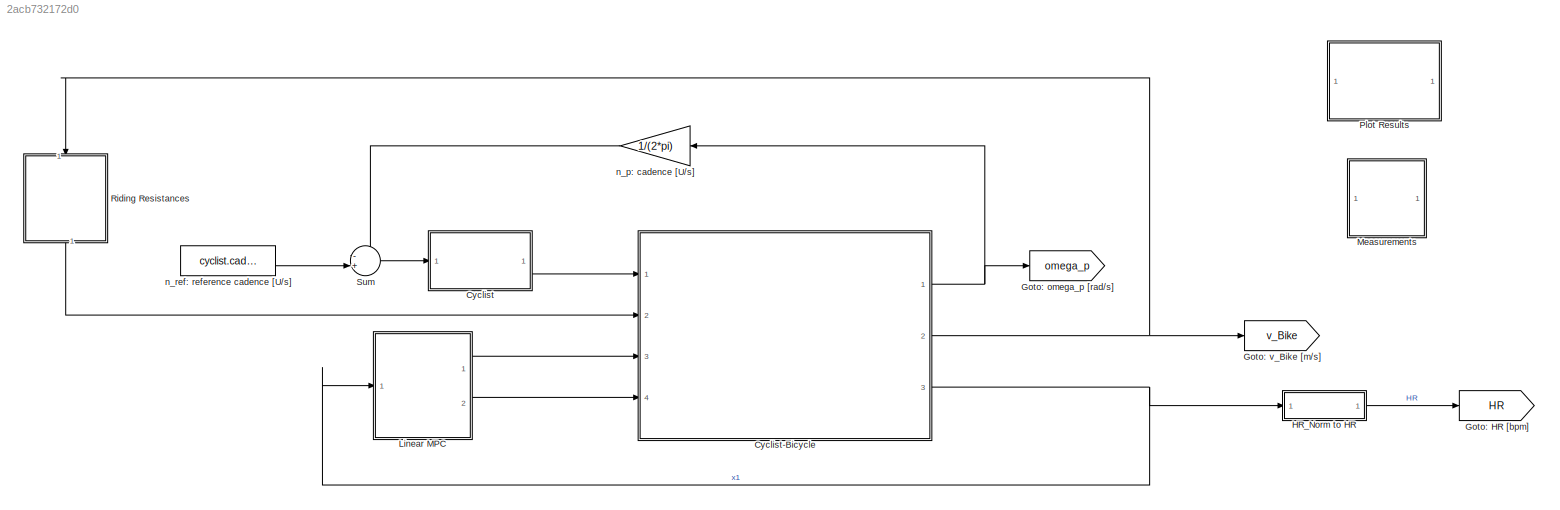
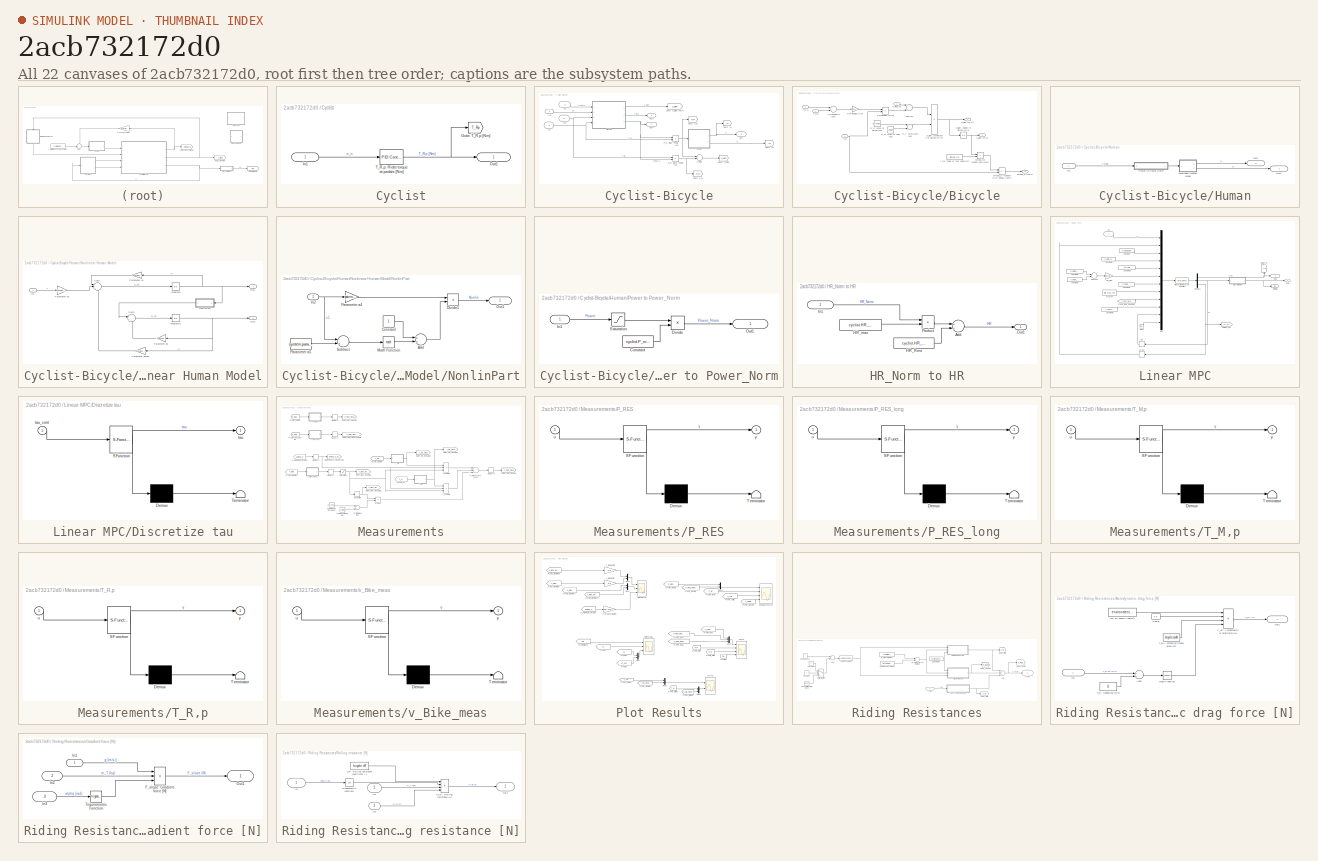
[diagram: thumbnail index - all 22 canvases of the model, root first then tree order]
MODEL slx_2acb732172d0
KIND model
CONFIG AbsTol = auto
CONFIG FixedStep = 1
CONFIG MaxStep = auto
CONFIG MinStep = auto
CONFIG RelTol = 1e-3
CONFIG SampleTimeConstraint = Unconstrained
CONFIG Solver = FixedStepAuto
CONFIG SolverMode = Auto
CONFIG SolverName = FixedStepAuto
CONFIG StartTime = 0.0
CONFIG StopTime = 100
BLOCK [SubSystem] Cyclist
  Ports = [1, 1]
  RequestExecContextInheritance = off
  Variant = off
BLOCK [SubSystem] Cyclist-Bicycle
  Ports = [4, 3]
  RequestExecContextInheritance = off
  Variant = off
BLOCK [SubSystem] Cyclist-Bicycle/Bicycle
  Ports = [4, 3]
  RequestExecContextInheritance = off
  Variant = off
BLOCK [Gain] Cyclist-Bicycle/Bicycle/F_Propulsion,p [N]
  Gain = 1/bicycle.rrw
  OutDataTypeStr = Inherit: Inherit via internal rule
  ParamDataTypeStr = Inherit: Inherit via internal rule
  SaturateOnIntegerOverflow = off
BLOCK [Product] Cyclist-Bicycle/Bicycle/F_Propulsion,rw [N]
  InputSameDT = off
  Inputs = */
  OutDataTypeStr = Inherit: Inherit via internal rule
  Ports = [2, 1]
  RndMeth = Floor
  SaturateOnIntegerOverflow = off
BLOCK [Inport] Cyclist-Bicycle/Bicycle/F_RES,rw
  IconDisplay = Port number
BLOCK [Sum] Cyclist-Bicycle/Bicycle/Subtract
  InputSameDT = off
  Inputs = -+
  OutDataTypeStr = Inherit: Inherit via internal rule
  Ports = [2, 1]
  SaturateOnIntegerOverflow = off
BLOCK [Inport] Cyclist-Bicycle/Bicycle/T_M,p
  IconDisplay = Port number
  Port = 3
BLOCK [Sum] Cyclist-Bicycle/Bicycle/T_Propulsion,p [Nm]
  InputSameDT = off
  OutDataTypeStr = Inherit: Inherit via internal rule
  Ports = [2, 1]
  SaturateOnIntegerOverflow = off
BLOCK [Inport] Cyclist-Bicycle/Bicycle/T_R,p
  IconDisplay = Port number
  Port = 4
BLOCK [Outport] Cyclist-Bicycle/Bicycle/a_Bike [m//s²]
  IconDisplay = Port number
BLOCK [Product] Cyclist-Bicycle/Bicycle/a_Bike: acceleration of bicycle [m//s²]
  InputSameDT = off
  Inputs = */
  OutDataTypeStr = Inherit: Inherit via internal rule
  Ports = [2, 1]
  RndMeth = Floor
  SaturateOnIntegerOverflow = off
BLOCK [Constant] Cyclist-Bicycle/Bicycle/m_B: mass of bicycle [kg]
  Value = bicycle.weight
BLOCK [Constant] Cyclist-Bicycle/Bicycle/m_R: mass of rider [kg]
  Value = cyclist.weight
BLOCK [Sum] Cyclist-Bicycle/Bicycle/m_T: total mass [kg]
  InputSameDT = off
  OutDataTypeStr = Inherit: Inherit via internal rule
  Ports = [2, 1]
  SaturateOnIntegerOverflow = off
BLOCK [Outport] Cyclist-Bicycle/Bicycle/omega_p [rad//s]
  IconDisplay = Port number
  Port = 3
BLOCK [Product] Cyclist-Bicycle/Bicycle/omega_p: revolutions of pedals [rad//s]
  InputSameDT = off
  Inputs = */
  OutDataTypeStr = Inherit: Inherit via internal rule
  Ports = [2, 1]
  RndMeth = Floor
  SaturateOnIntegerOverflow = off
BLOCK [Product] Cyclist-Bicycle/Bicycle/omega_rw: revolutions of rear wheel [rad//s]
  InputSameDT = off
  Inputs = */
  OutDataTypeStr = Inherit: Inherit via internal rule
  Ports = [2, 1]
  RndMeth = Floor
  SaturateOnIntegerOverflow = off
BLOCK [Constant] Cyclist-Bicycle/Bicycle/r_rw: radius of rear wheel [m]
  Value = bicycle.rrw
BLOCK [Inport] Cyclist-Bicycle/Bicycle/tau
  IconDisplay = Port number
  Port = 2
BLOCK [Outport] Cyclist-Bicycle/Bicycle/v_Bike [m//s]
  IconDisplay = Port number
  Port = 2
BLOCK [Integrator] Cyclist-Bicycle/Bicycle/v_Bike: velocity of bicycle [m//s]
  InitialCondition = init.v_Bike
  Ports = [1, 1]
BLOCK [Goto] Cyclist-Bicycle/Goto: P_M
  GotoTag = P_M
  TagVisibility = global
BLOCK [Goto] Cyclist-Bicycle/Goto: P_R
  GotoTag = P_R
  TagVisibility = global
BLOCK [Goto] Cyclist-Bicycle/Goto: P_RES
  GotoTag = P_RES
  TagVisibility = global
BLOCK [Goto] Cyclist-Bicycle/Goto: a_Bike [m//s²]
  GotoTag = a_Bike
  TagVisibility = global
BLOCK [Goto] Cyclist-Bicycle/Goto: x1
  GotoTag = x1
  TagVisibility = global
BLOCK [Goto] Cyclist-Bicycle/Goto: x2
  GotoTag = x2
  TagVisibility = global
BLOCK [SubSystem] Cyclist-Bicycle/Human
  Ports = [1, 2]
  RequestExecContextInheritance = off
  Variant = off
BLOCK [Inport] Cyclist-Bicycle/Human/In1
  IconDisplay = Signal name
BLOCK [SubSystem] Cyclist-Bicycle/Human/Nonlinear Human Model
  Ports = [1, 2]
  RequestExecContextInheritance = off
  Variant = off
BLOCK [Inport] Cyclist-Bicycle/Human/Nonlinear Human Model/In1
  IconDisplay = Signal name
BLOCK [Integrator] Cyclist-Bicycle/Human/Nonlinear Human Model/Integrator
  InitialCondition = init.x1
  Ports = [1, 1]
BLOCK [Integrator] Cyclist-Bicycle/Human/Nonlinear Human Model/Integrator1
  InitialCondition = init.x2
  Ports = [1, 1]
BLOCK [SubSystem] Cyclist-Bicycle/Human/Nonlinear Human Model/NonlinPart
  Ports = [1, 1]
  RequestExecContextInheritance = off
  Variant = off
BLOCK [Sum] Cyclist-Bicycle/Human/Nonlinear Human Model/NonlinPart/Add
  InputSameDT = off
  OutDataTypeStr = Inherit: Inherit via internal rule
  Ports = [2, 1]
  SaturateOnIntegerOverflow = off
BLOCK [Constant] Cyclist-Bicycle/Human/Nonlinear Human Model/NonlinPart/Constant
BLOCK [Product] Cyclist-Bicycle/Human/Nonlinear Human Model/NonlinPart/Divide1
  InputSameDT = off
  Inputs = */
  OutDataTypeStr = Inherit: Inherit via internal rule
  Ports = [2, 1]
  RndMeth = Floor
  SaturateOnIntegerOverflow = off
BLOCK [Inport] Cyclist-Bicycle/Human/Nonlinear Human Model/NonlinPart/In2
  IconDisplay = Signal name
BLOCK [Math] Cyclist-Bicycle/Human/Nonlinear Human Model/NonlinPart/Math Function
  Ports = [1, 1]
BLOCK [Outport] Cyclist-Bicycle/Human/Nonlinear Human Model/NonlinPart/Out1
  IconDisplay = Signal name
BLOCK [Gain] Cyclist-Bicycle/Human/Nonlinear Human Model/NonlinPart/Parameter a4
  Gain = system.param(4)
  OutDataTypeStr = Inherit: Inherit via internal rule
  ParamDataTypeStr = Inherit: Inherit via internal rule
  SaturateOnIntegerOverflow = off
BLOCK [Constant] Cyclist-Bicycle/Human/Nonlinear Human Model/NonlinPart/Parameter a5
  Value = system.param(5)
BLOCK [Sum] Cyclist-Bicycle/Human/Nonlinear Human Model/NonlinPart/Subtract
  InputSameDT = off
  Inputs = -+
  OutDataTypeStr = Inherit: Inherit via internal rule
  Ports = [2, 1]
  SaturateOnIntegerOverflow = off
BLOCK [Outport] Cyclist-Bicycle/Human/Nonlinear Human Model/Out1
  IconDisplay = Signal name
BLOCK [Outport] Cyclist-Bicycle/Human/Nonlinear Human Model/Out2
  IconDisplay = Signal name
  Port = 2
BLOCK [Gain] Cyclist-Bicycle/Human/Nonlinear Human Model/Parameter a1
  Gain = -system.param(1)
  OutDataTypeStr = Inherit: Inherit via internal rule
  ParamDataTypeStr = Inherit: Inherit via internal rule
  SaturateOnIntegerOverflow = off
BLOCK [Gain] Cyclist-Bicycle/Human/Nonlinear Human Model/Parameter a2
  Gain = system.param(2)
  OutDataTypeStr = Inherit: Inherit via internal rule
  ParamDataTypeStr = Inherit: Inherit via internal rule
  SaturateOnIntegerOverflow = off
BLOCK [Gain] Cyclist-Bicycle/Human/Nonlinear Human Model/Parameter a3
  Gain = -system.param(3)
  OutDataTypeStr = Inherit: Inherit via internal rule
  ParamDataTypeStr = Inherit: Inherit via internal rule
  SaturateOnIntegerOverflow = off
BLOCK [Gain] Cyclist-Bicycle/Human/Nonlinear Human Model/Parameter a6=a2
  Gain = system.param(6)
  OutDataTypeStr = Inherit: Inherit via internal rule
  ParamDataTypeStr = Inherit: Inherit via internal rule
  SaturateOnIntegerOverflow = off
BLOCK [Sum] Cyclist-Bicycle/Human/Nonlinear Human Model/Sum1
  IconShape = round
  InputSameDT = off
  Inputs = |+++
  OutDataTypeStr = Inherit: Inherit via internal rule
  Ports = [3, 1]
  SaturateOnIntegerOverflow = off
BLOCK [Sum] Cyclist-Bicycle/Human/Nonlinear Human Model/Sum2
  IconShape = round
  InputSameDT = off
  Inputs = |++
  OutDataTypeStr = Inherit: Inherit via internal rule
  Ports = [2, 1]
  SaturateOnIntegerOverflow = off
BLOCK [Outport] Cyclist-Bicycle/Human/Out1
  IconDisplay = Signal name
BLOCK [Outport] Cyclist-Bicycle/Human/Out2
  IconDisplay = Signal name
  Port = 2
BLOCK [SubSystem] Cyclist-Bicycle/Human/Power to Power_Norm
  Ports = [1, 1]
  RequestExecContextInheritance = off
  Variant = off
BLOCK [Constant] Cyclist-Bicycle/Human/Power to Power_Norm/Constant
  Value = cyclist.P_max
BLOCK [Product] Cyclist-Bicycle/Human/Power to Power_Norm/Divide
  InputSameDT = off
  Inputs = */
  OutDataTypeStr = Inherit: Inherit via internal rule
  Ports = [2, 1]
  RndMeth = Floor
  SaturateOnIntegerOverflow = off
BLOCK [Inport] Cyclist-Bicycle/Human/Power to Power_Norm/In1
  IconDisplay = Signal name
BLOCK [Outport] Cyclist-Bicycle/Human/Power to Power_Norm/Out1
  IconDisplay = Signal name
BLOCK [Saturate] Cyclist-Bicycle/Human/Power to Power_Norm/Saturation
  InputPortMap = u0
  LowerLimit = 0
  Ports = [1, 1]
  UpperLimit = cyclist.P_max
  ZeroCross = off
BLOCK [Inport] Cyclist-Bicycle/In1
  IconDisplay = Signal name
  Port = 2
BLOCK [Inport] Cyclist-Bicycle/In2
  IconDisplay = Signal name
  Port = 4
BLOCK [Inport] Cyclist-Bicycle/In3
  IconDisplay = Signal name
  Port = 3
BLOCK [Inport] Cyclist-Bicycle/In4
  IconDisplay = Signal name
BLOCK [Outport] Cyclist-Bicycle/Out1
  IconDisplay = Signal name
  Port = 3
BLOCK [Outport] Cyclist-Bicycle/Out2
  IconDisplay = Signal name
  Port = 2
BLOCK [Outport] Cyclist-Bicycle/Out4
  IconDisplay = Signal name
BLOCK [Product] Cyclist-Bicycle/P_M: Motor Power [W]
  InputSameDT = off
  OutDataTypeStr = Inherit: Inherit via internal rule
  Ports = [2, 1]
  RndMeth = Floor
  SaturateOnIntegerOverflow = off
BLOCK [Product] Cyclist-Bicycle/P_R: Rider Power [W]
  InputSameDT = off
  OutDataTypeStr = Inherit: Inherit via internal rule
  Ports = [2, 1]
  RndMeth = Floor
  SaturateOnIntegerOverflow = off
BLOCK [Sum] Cyclist-Bicycle/P_RES
  InputSameDT = off
  OutDataTypeStr = Inherit: Inherit via internal rule
  Ports = [2, 1]
  SaturateOnIntegerOverflow = off
BLOCK [Goto] Cyclist/Goto: T_R,p [Nm]
  GotoTag = T_Rp
  TagVisibility = global
BLOCK [Inport] Cyclist/In1
  IconDisplay = Signal name
BLOCK [Outport] Cyclist/Out1
  IconDisplay = Signal name
BLOCK [Reference] Cyclist/T_R,p: Rider torque at pedals [Nm]  REF=simulink/Continuous/PID Controller
  Ports = [1, 1]
  SourceBlock = simulink/Continuous/PID Controller
  SourceType = PID 1dof
BLOCK [Goto] Goto: HR [bpm]
  GotoTag = HR
  TagVisibility = global
BLOCK [Goto] Goto: omega_p [rad//s]
  GotoTag = omega_p
  TagVisibility = global
BLOCK [Goto] Goto: v_Bike [m//s]
  GotoTag = v_Bike
  TagVisibility = global
BLOCK [SubSystem] HR_Norm to HR
  Ports = [1, 1]
  RequestExecContextInheritance = off
  Variant = off
BLOCK [Sum] HR_Norm to HR/Add
  InputSameDT = off
  OutDataTypeStr = Inherit: Inherit via internal rule
  Ports = [2, 1]
  SaturateOnIntegerOverflow = off
BLOCK [Constant] HR_Norm to HR/HR_Rest
  Value = cyclist.HR_rest
BLOCK [Constant] HR_Norm to HR/HR_max
  Value = cyclist.HR_max
BLOCK [Inport] HR_Norm to HR/In1
  IconDisplay = Signal name
BLOCK [Outport] HR_Norm to HR/Out1
  IconDisplay = Signal name
BLOCK [Product] HR_Norm to HR/Product
  InputSameDT = off
  OutDataTypeStr = Inherit: Inherit via internal rule
  Ports = [2, 1]
  RndMeth = Floor
  SaturateOnIntegerOverflow = off
BLOCK [SubSystem] Linear MPC
  Ports = [1, 2]
  RequestExecContextInheritance = off
  Variant = off
BLOCK [Clock] Linear MPC/Clock
BLOCK [Constant] Linear MPC/Constant
  Value = system.param
BLOCK [Constant] Linear MPC/Constant1
  Value = cyclist.P_max
BLOCK [Constant] Linear MPC/Constant2
  Value = bicycle.rrw
BLOCK [Constant] Linear MPC/Constant3
  Value = cyclist.HR_rest
BLOCK [Constant] Linear MPC/Constant4
  Value = cyclist.HR_max
BLOCK [Constant] Linear MPC/Constant5
  Value = cyclist.HR_ref
BLOCK [Constant] Linear MPC/Constant6
  Value = cyclist.cadence
BLOCK [Demux] Linear MPC/Demux1
  DisplayOption = bar
  Outputs = 3
  Ports = [1, 3]
BLOCK [SubSystem] Linear MPC/Discretize tau
  ErrorFcn = Stateflow.Translate.translate
  PermitHierarchicalResolution = ExplicitOnly
  Ports = [1, 1]
  RequestExecContextInheritance = off
  SFBlockType = MATLAB Function
  TreatAsAtomicUnit = on
  Variant = off
BLOCK [Demux] Linear MPC/Discretize tau/ Demux 
  Outputs = 1
  Ports = [1, 1]
BLOCK [S-Function] Linear MPC/Discretize tau/ SFunction 
  EnableBusSupport = off
  FunctionName = sf_sfun
  PortCounts = [1 2]
  Ports = [1, 2]
  SFunctionDeploymentMode = off
  Tag = Stateflow S-Function TorqueControl_QuadRad_MPC_TMTau_disc 1
BLOCK [Terminator] Linear MPC/Discretize tau/ Terminator 
BLOCK [Outport] Linear MPC/Discretize tau/tau
  IconDisplay = Port number
BLOCK [Inport] Linear MPC/Discretize tau/tau_cont
  IconDisplay = Port number
BLOCK [From] Linear MPC/From: v_Bike_meas [m//s]
  GotoTag = F_RES_meas
  TagVisibility = global
BLOCK [Goto] Linear MPC/Goto: T_M
  GotoTag = T_M
  TagVisibility = global
BLOCK [Goto] Linear MPC/Goto: tau
  GotoTag = tau
  TagVisibility = global
BLOCK [Goto] Linear MPC/Goto: x2_est
  GotoTag = x2_est
  TagVisibility = global
BLOCK [Gain] Linear MPC/HR_max
  Gain = 1/cyclist.HR_max
  OutDataTypeStr = Inherit: Inherit via internal rule
  ParamDataTypeStr = Inherit: Inherit via internal rule
  SaturateOnIntegerOverflow = off
BLOCK [Inport] Linear MPC/In1
  IconDisplay = Signal name
BLOCK [MATLABFcn] Linear MPC/Interpreted MATLAB Function
  MATLABFcn = LinearMPC_TMTau_cont
  OutputDimensions = 3
  Ports = [1, 1]
BLOCK [Mux] Linear MPC/Mux
  DisplayOption = bar
  Inputs = 12
  Ports = [12, 1]
BLOCK [Outport] Linear MPC/Out1
  IconDisplay = Signal name
BLOCK [Outport] Linear MPC/Out2
  IconDisplay = Signal name
  Port = 2
BLOCK [Constant] Linear MPC/P_M_ref
  Value = init.P_M_ref
BLOCK [Sum] Linear MPC/Subtract1
  InputSameDT = off
  Inputs = +-
  OutDataTypeStr = Inherit: Inherit via internal rule
  Ports = [2, 1]
  SaturateOnIntegerOverflow = off
BLOCK [Memory] Linear MPC/tau
  InheritSampleTime = on
  X0 = init.tau
BLOCK [Memory] Linear MPC/x2_est
  InheritSampleTime = on
  X0 = init.x2_est
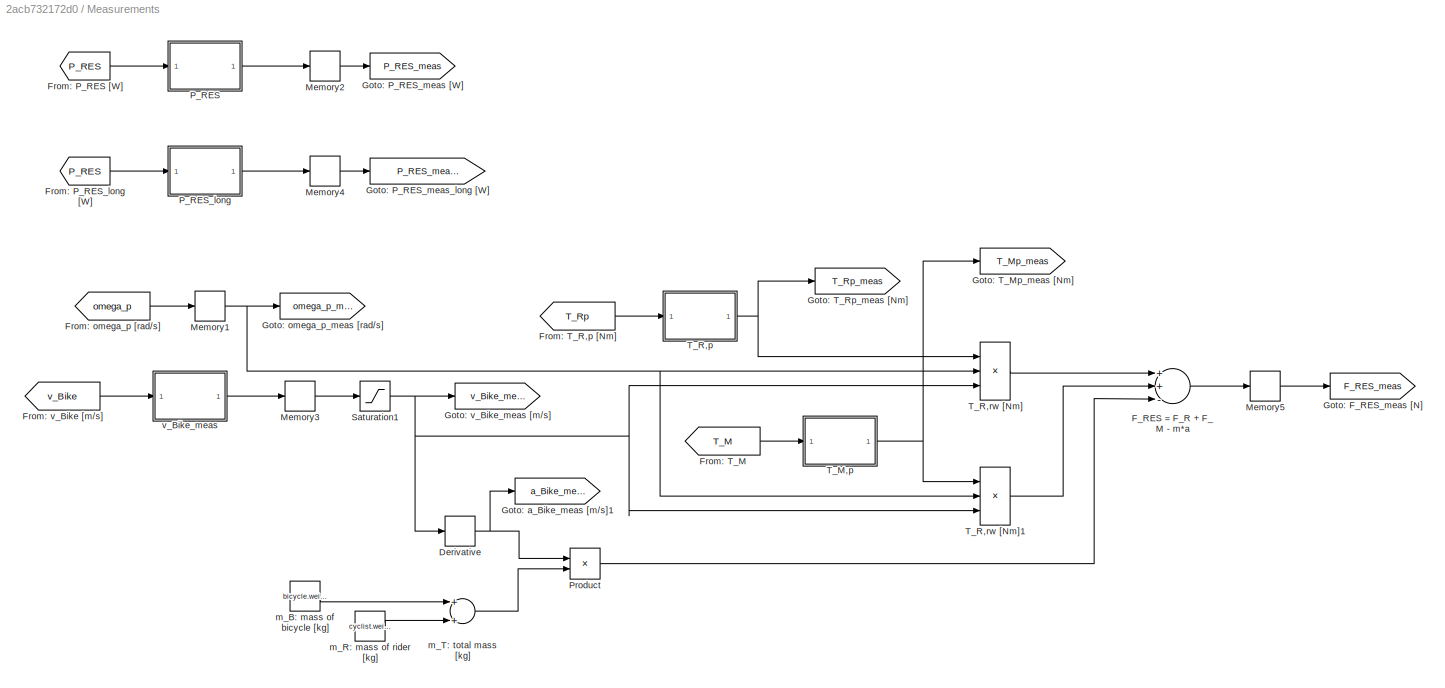
BLOCK [SubSystem] Measurements
  Ports = []
  RequestExecContextInheritance = off
  Variant = off
BLOCK [Derivative] Measurements/Derivative
BLOCK [Sum] Measurements/F_RES = F_R + F_M - m*a
  InputSameDT = off
  Inputs = ++-
  OutDataTypeStr = Inherit: Inherit via internal rule
  Ports = [3, 1]
  SaturateOnIntegerOverflow = off
BLOCK [From] Measurements/From: P_RES [W]
  GotoTag = P_RES
  TagVisibility = global
BLOCK [From] Measurements/From: P_RES_long [W]
  GotoTag = P_RES
  TagVisibility = global
BLOCK [From] Measurements/From: T_M
  GotoTag = T_M
  TagVisibility = global
BLOCK [From] Measurements/From: T_R,p [Nm]
  GotoTag = T_Rp
  TagVisibility = global
BLOCK [From] Measurements/From: omega_p [rad//s]
  GotoTag = omega_p
  TagVisibility = global
BLOCK [From] Measurements/From: v_Bike [m//s]
  GotoTag = v_Bike
  TagVisibility = global
BLOCK [Goto] Measurements/Goto: F_RES_meas [N]
  GotoTag = F_RES_meas
  TagVisibility = global
BLOCK [Goto] Measurements/Goto: P_RES_meas [W]
  GotoTag = P_RES_meas
  TagVisibility = global
BLOCK [Goto] Measurements/Goto: P_RES_meas_long [W]
  GotoTag = P_RES_meas_long
  TagVisibility = global
BLOCK [Goto] Measurements/Goto: T_Mp_meas [Nm]
  GotoTag = T_Mp_meas
  TagVisibility = global
BLOCK [Goto] Measurements/Goto: T_Rp_meas [Nm]
  GotoTag = T_Rp_meas
  TagVisibility = global
BLOCK [Goto] Measurements/Goto: a_Bike_meas [m//s]1
  GotoTag = a_Bike_meas
  TagVisibility = global
BLOCK [Goto] Measurements/Goto: omega_p_meas [rad//s]
  GotoTag = omega_p_meas
  TagVisibility = global
BLOCK [Goto] Measurements/Goto: v_Bike_meas [m//s]
  GotoTag = v_Bike_meas
  TagVisibility = global
BLOCK [Memory] Measurements/Memory1
  InheritSampleTime = on
  X0 = init.omega_p
BLOCK [Memory] Measurements/Memory2
  InheritSampleTime = on
  X0 = init.P_RES
BLOCK [Memory] Measurements/Memory3
  InheritSampleTime = on
  X0 = init.v_Bike
BLOCK [Memory] Measurements/Memory4
  InheritSampleTime = on
  X0 = init.P_RES
BLOCK [Memory] Measurements/Memory5
  InheritSampleTime = on
  X0 = 10
BLOCK [SubSystem] Measurements/P_RES
  ErrorFcn = Stateflow.Translate.translate
  PermitHierarchicalResolution = ExplicitOnly
  Ports = [1, 1]
  RequestExecContextInheritance = off
  SFBlockType = MATLAB Function
  TreatAsAtomicUnit = on
  Variant = off
BLOCK [Demux] Measurements/P_RES/ Demux 
  Outputs = 1
  Ports = [1, 1]
BLOCK [S-Function] Measurements/P_RES/ SFunction 
  EnableBusSupport = on
  FunctionName = sf_sfun
  PortCounts = [1 2]
  Ports = [1, 2]
  SFunctionDeploymentMode = off
  Tag = Stateflow S-Function TorqueControl_QuadRad_MPC_TMTau_disc 2
BLOCK [Terminator] Measurements/P_RES/ Terminator 
BLOCK [Inport] Measurements/P_RES/u
  IconDisplay = Port number
BLOCK [Outport] Measurements/P_RES/y
  IconDisplay = Port number
BLOCK [SubSystem] Measurements/P_RES_long
  ErrorFcn = Stateflow.Translate.translate
  PermitHierarchicalResolution = ExplicitOnly
  Ports = [1, 1]
  RequestExecContextInheritance = off
  SFBlockType = MATLAB Function
  TreatAsAtomicUnit = on
  Variant = off
BLOCK [Demux] Measurements/P_RES_long/ Demux 
  Outputs = 1
  Ports = [1, 1]
BLOCK [S-Function] Measurements/P_RES_long/ SFunction 
  EnableBusSupport = on
  FunctionName = sf_sfun
  PortCounts = [1 2]
  Ports = [1, 2]
  SFunctionDeploymentMode = off
  Tag = Stateflow S-Function TorqueControl_QuadRad_MPC_TMTau_disc 4
BLOCK [Terminator] Measurements/P_RES_long/ Terminator 
BLOCK [Inport] Measurements/P_RES_long/u
  IconDisplay = Port number
BLOCK [Outport] Measurements/P_RES_long/y
  IconDisplay = Port number
BLOCK [Product] Measurements/Product
  InputSameDT = off
  OutDataTypeStr = Inherit: Inherit via internal rule
  Ports = [2, 1]
  RndMeth = Floor
  SaturateOnIntegerOverflow = off
BLOCK [Saturate] Measurements/Saturation1
  InputPortMap = u0
  LowerLimit = 0.1
  Ports = [1, 1]
  UpperLimit = 100
BLOCK [SubSystem] Measurements/T_M,p
  ErrorFcn = Stateflow.Translate.translate
  PermitHierarchicalResolution = ExplicitOnly
  Ports = [1, 1]
  RequestExecContextInheritance = off
  SFBlockType = MATLAB Function
  TreatAsAtomicUnit = on
  Variant = off
BLOCK [Demux] Measurements/T_M,p/ Demux 
  Outputs = 1
  Ports = [1, 1]
BLOCK [S-Function] Measurements/T_M,p/ SFunction 
  EnableBusSupport = on
  FunctionName = sf_sfun
  PortCounts = [1 2]
  Ports = [1, 2]
  SFunctionDeploymentMode = off
  Tag = Stateflow S-Function TorqueControl_QuadRad_MPC_TMTau_disc 6
BLOCK [Terminator] Measurements/T_M,p/ Terminator 
BLOCK [Inport] Measurements/T_M,p/u
  IconDisplay = Port number
BLOCK [Outport] Measurements/T_M,p/y
  IconDisplay = Port number
BLOCK [SubSystem] Measurements/T_R,p
  ErrorFcn = Stateflow.Translate.translate
  PermitHierarchicalResolution = ExplicitOnly
  Ports = [1, 1]
  RequestExecContextInheritance = off
  SFBlockType = MATLAB Function
  TreatAsAtomicUnit = on
  Variant = off
BLOCK [Demux] Measurements/T_R,p/ Demux 
  Outputs = 1
  Ports = [1, 1]
BLOCK [S-Function] Measurements/T_R,p/ SFunction 
  EnableBusSupport = on
  FunctionName = sf_sfun
  PortCounts = [1 2]
  Ports = [1, 2]
  SFunctionDeploymentMode = off
  Tag = Stateflow S-Function TorqueControl_QuadRad_MPC_TMTau_disc 5
BLOCK [Terminator] Measurements/T_R,p/ Terminator 
BLOCK [Inport] Measurements/T_R,p/u
  IconDisplay = Port number
BLOCK [Outport] Measurements/T_R,p/y
  IconDisplay = Port number
BLOCK [Product] Measurements/T_R,rw [Nm]
  InputSameDT = off
  Inputs = **/
  OutDataTypeStr = Inherit: Inherit via internal rule
  Ports = [3, 1]
  RndMeth = Floor
  SaturateOnIntegerOverflow = off
BLOCK [Product] Measurements/T_R,rw [Nm]1
  InputSameDT = off
  Inputs = **/
  OutDataTypeStr = Inherit: Inherit via internal rule
  Ports = [3, 1]
  RndMeth = Floor
  SaturateOnIntegerOverflow = off
BLOCK [Constant] Measurements/m_B: mass of bicycle [kg]
  Value = bicycle.weight
BLOCK [Constant] Measurements/m_R: mass of rider [kg]
  Value = cyclist.weight
BLOCK [Sum] Measurements/m_T: total mass [kg]
  InputSameDT = off
  OutDataTypeStr = Inherit: Inherit via internal rule
  Ports = [2, 1]
  SaturateOnIntegerOverflow = off
BLOCK [SubSystem] Measurements/v_Bike_meas
  ErrorFcn = Stateflow.Translate.translate
  PermitHierarchicalResolution = ExplicitOnly
  Ports = [1, 1]
  RequestExecContextInheritance = off
  SFBlockType = MATLAB Function
  TreatAsAtomicUnit = on
  Variant = off
BLOCK [Demux] Measurements/v_Bike_meas/ Demux 
  Outputs = 1
  Ports = [1, 1]
BLOCK [S-Function] Measurements/v_Bike_meas/ SFunction 
  EnableBusSupport = on
  FunctionName = sf_sfun
  PortCounts = [1 2]
  Ports = [1, 2]
  SFunctionDeploymentMode = off
  Tag = Stateflow S-Function TorqueControl_QuadRad_MPC_TMTau_disc 3
BLOCK [Terminator] Measurements/v_Bike_meas/ Terminator 
BLOCK [Inport] Measurements/v_Bike_meas/u
  IconDisplay = Port number
BLOCK [Outport] Measurements/v_Bike_meas/y
  IconDisplay = Port number
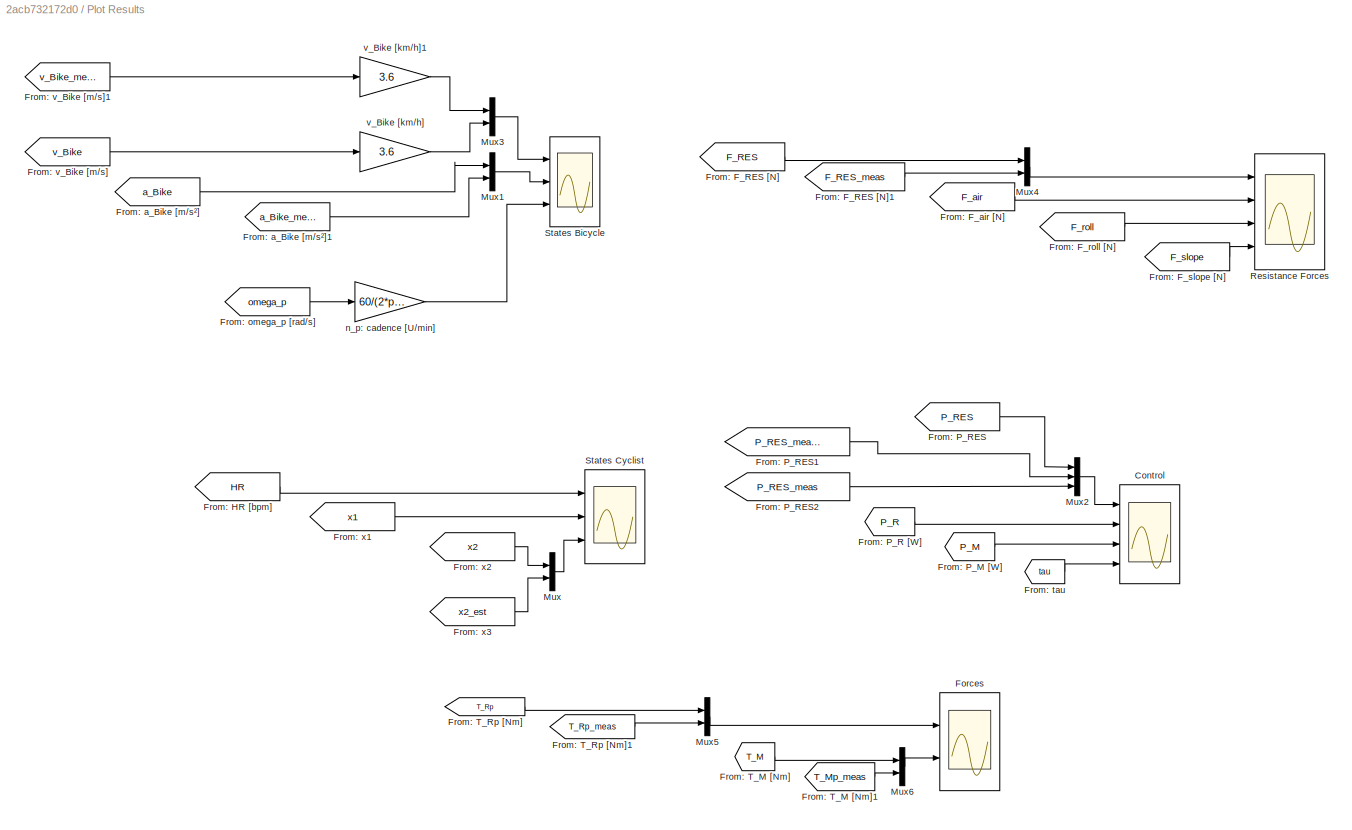
BLOCK [SubSystem] Plot Results
  Ports = []
  RequestExecContextInheritance = off
  Variant = off
BLOCK [Scope] Plot Results/Control
  NumInputPorts = 4
  Ports = [4]
  ScopeSpecificationString = Simulink.scopes.TimeScopeBlockCfg('CurrentConfiguration', extmgr.ConfigurationSet(extmgr.Configuration('Core','General UI',true),extmgr.Configuration('Core','Source UI',true),extmgr.Configuration('Sources','WiredSimulink',true,'DataLoggingVariableName','ScopeData3'),extmgr.Configuration('Visuals','Time Domain',true,'SerializedDisplays',{struct('MinYLimReal','-58.6838','MaxYLimReal','528.15422','YL...<+3476ch>
BLOCK [Scope] Plot Results/Forces
  NumInputPorts = 2
  Ports = [2]
  ScopeSpecificationString = Simulink.scopes.TimeScopeBlockCfg('CurrentConfiguration', extmgr.ConfigurationSet(extmgr.Configuration('Core','General UI',true),extmgr.Configuration('Core','Source UI',true),extmgr.Configuration('Sources','WiredSimulink',true,'DataLoggingVariableName','ScopeData1'),extmgr.Configuration('Visuals','Time Domain',true,'SerializedDisplays',{struct('MinYLimReal','-43.19373','MaxYLimReal','388.74356','Y...<+2061ch>
BLOCK [From] Plot Results/From: F_RES [N]
  GotoTag = F_RES
  TagVisibility = global
BLOCK [From] Plot Results/From: F_RES [N]1
  GotoTag = F_RES_meas
  TagVisibility = global
BLOCK [From] Plot Results/From: F_air [N]
  GotoTag = F_air
  TagVisibility = global
BLOCK [From] Plot Results/From: F_roll [N]
  GotoTag = F_roll
  TagVisibility = global
BLOCK [From] Plot Results/From: F_slope [N]
  GotoTag = F_slope
  TagVisibility = global
BLOCK [From] Plot Results/From: HR [bpm]
  GotoTag = HR
  TagVisibility = global
BLOCK [From] Plot Results/From: P_M [W]
  GotoTag = P_M
  TagVisibility = global
BLOCK [From] Plot Results/From: P_R [W]
  GotoTag = P_R
  TagVisibility = global
BLOCK [From] Plot Results/From: P_RES
  GotoTag = P_RES
  TagVisibility = global
BLOCK [From] Plot Results/From: P_RES1
  GotoTag = P_RES_meas_long
  TagVisibility = global
BLOCK [From] Plot Results/From: P_RES2
  GotoTag = P_RES_meas
  TagVisibility = global
BLOCK [From] Plot Results/From: T_M [Nm]
  GotoTag = T_M
  TagVisibility = global
BLOCK [From] Plot Results/From: T_M [Nm]1
  GotoTag = T_Mp_meas
  TagVisibility = global
BLOCK [From] Plot Results/From: T_Rp [Nm]
  GotoTag = T_Rp
  TagVisibility = global
BLOCK [From] Plot Results/From: T_Rp [Nm]1
  GotoTag = T_Rp_meas
  TagVisibility = global
BLOCK [From] Plot Results/From: a_Bike [m//s²]
  GotoTag = a_Bike
  TagVisibility = global
BLOCK [From] Plot Results/From: a_Bike [m//s²]1
  GotoTag = a_Bike_meas
  TagVisibility = global
BLOCK [From] Plot Results/From: omega_p [rad//s]
  GotoTag = omega_p
  TagVisibility = global
BLOCK [From] Plot Results/From: tau
  GotoTag = tau
  TagVisibility = global
BLOCK [From] Plot Results/From: v_Bike [m//s]
  GotoTag = v_Bike
  TagVisibility = global
BLOCK [From] Plot Results/From: v_Bike [m//s]1
  GotoTag = v_Bike_meas
  TagVisibility = global
BLOCK [From] Plot Results/From: x1
  GotoTag = x1
  TagVisibility = global
BLOCK [From] Plot Results/From: x2
  GotoTag = x2
  TagVisibility = global
BLOCK [From] Plot Results/From: x3
  GotoTag = x2_est
  TagVisibility = global
BLOCK [Mux] Plot Results/Mux
  DisplayOption = bar
  Inputs = 2
  Ports = [2, 1]
BLOCK [Mux] Plot Results/Mux1
  DisplayOption = bar
  Inputs = 2
  Ports = [2, 1]
BLOCK [Mux] Plot Results/Mux2
  DisplayOption = bar
  Inputs = 3
  Ports = [3, 1]
BLOCK [Mux] Plot Results/Mux3
  DisplayOption = bar
  Inputs = 2
  Ports = [2, 1]
BLOCK [Mux] Plot Results/Mux4
  DisplayOption = bar
  Inputs = 2
  Ports = [2, 1]
BLOCK [Mux] Plot Results/Mux5
  DisplayOption = bar
  Inputs = 2
  Ports = [2, 1]
BLOCK [Mux] Plot Results/Mux6
  DisplayOption = bar
  Inputs = 2
  Ports = [2, 1]
BLOCK [Scope] Plot Results/Resistance Forces
  NumInputPorts = 4
  Ports = [4]
  ScopeSpecificationString = Simulink.scopes.TimeScopeBlockCfg('CurrentConfiguration', extmgr.ConfigurationSet(extmgr.Configuration('Core','General UI',true),extmgr.Configuration('Core','Source UI',true),extmgr.Configuration('Sources','WiredSimulink',true,'DataLoggingVariableName','ScopeData2'),extmgr.Configuration('Visuals','Time Domain',true,'SerializedDisplays',{struct('MinYLimReal','10.33962','MaxYLimReal','87.44867','YLa...<+3455ch>
BLOCK [Scope] Plot Results/States Bicycle
  NumInputPorts = 3
  Ports = [3]
  ScopeSpecificationString = Simulink.scopes.TimeScopeBlockCfg('CurrentConfiguration', extmgr.ConfigurationSet(extmgr.Configuration('Core','General UI',true),extmgr.Configuration('Core','Source UI',true),extmgr.Configuration('Sources','WiredSimulink',true,'DataLoggingVariableName','ScopeData1'),extmgr.Configuration('Visuals','Time Domain',true,'SerializedDisplays',{struct('MinYLimReal','-4.62487','MaxYLimReal','41.62384','YLa...<+2745ch>
BLOCK [Scope] Plot Results/States Cyclist
  NumInputPorts = 3
  Ports = [3]
  ScopeSpecificationString = Simulink.scopes.TimeScopeBlockCfg('CurrentConfiguration', extmgr.ConfigurationSet(extmgr.Configuration('Core','General UI',true),extmgr.Configuration('Core','Source UI',true),extmgr.Configuration('Sources','WiredSimulink',true,'DataLoggingVariableName','ScopeData1'),extmgr.Configuration('Visuals','Time Domain',true,'SerializedDisplays',{struct('MinYLimReal','127.8231','MaxYLimReal','157.1308','YLa...<+2736ch>
BLOCK [Gain] Plot Results/n_p: cadence [U//min]
  Gain = 60/(2*pi)
  OutDataTypeStr = Inherit: Inherit via internal rule
  ParamDataTypeStr = Inherit: Inherit via internal rule
  SaturateOnIntegerOverflow = off
BLOCK [Gain] Plot Results/v_Bike [km//h]
  Gain = 3.6
  OutDataTypeStr = Inherit: Inherit via internal rule
  ParamDataTypeStr = Inherit: Inherit via internal rule
  SaturateOnIntegerOverflow = off
BLOCK [Gain] Plot Results/v_Bike [km//h]1
  Gain = 3.6
  OutDataTypeStr = Inherit: Inherit via internal rule
  ParamDataTypeStr = Inherit: Inherit via internal rule
  SaturateOnIntegerOverflow = off
BLOCK [SubSystem] Riding Resistances
  Ports = [1, 1]
  RequestExecContextInheritance = off
  Variant = off
BLOCK [Sum] Riding Resistances/Add
  InputSameDT = off
  Inputs = +++
  OutDataTypeStr = Inherit: Inherit via internal rule
  Ports = [3, 1]
  SaturateOnIntegerOverflow = off
BLOCK [Sum] Riding Resistances/Add1
  InputSameDT = off
  OutDataTypeStr = Inherit: Inherit via internal rule
  Ports = [2, 1]
  SaturateOnIntegerOverflow = off
BLOCK [SubSystem] Riding Resistances/Aerodynamic drag force [N]
  Ports = [1, 1]
  RequestExecContextInheritance = off
  Variant = off
BLOCK [Sum] Riding Resistances/Aerodynamic drag force [N]/Add1
  InputSameDT = off
  OutDataTypeStr = Inherit: Inherit via internal rule
  Ports = [2, 1]
  SaturateOnIntegerOverflow = off
BLOCK [Product] Riding Resistances/Aerodynamic drag force [N]/F_air: Aerodynamical drag force [N]
  InputSameDT = off
  Inputs = 4
  OutDataTypeStr = Inherit: Inherit via internal rule
  Ports = [4, 1]
  RndMeth = Floor
  SaturateOnIntegerOverflow = off
BLOCK [Constant] Riding Resistances/Aerodynamic drag force [N]/Factor
  Value = 0.5
BLOCK [Inport] Riding Resistances/Aerodynamic drag force [N]/In1
  IconDisplay = Signal name
BLOCK [Math] Riding Resistances/Aerodynamic drag force [N]/Math Function
  Operator = square
  Ports = [1, 1]
BLOCK [Outport] Riding Resistances/Aerodynamic drag force [N]/Out1
  IconDisplay = Signal name
BLOCK [Constant] Riding Resistances/Aerodynamic drag force [N]/c_wA: effective frontal area [m²] 
  Value = bicycle.cwA
BLOCK [Constant] Riding Resistances/Aerodynamic drag force [N]/rho: air density [kg//m³]
  Value = environment.rho
BLOCK [Constant] Riding Resistances/Aerodynamic drag force [N]/v_w: Headwind [m//s]
  Value = 0
BLOCK [Reference] Riding Resistances/Angle Conversion  REF=aerolibconvert2/Angle Conversion
  Ports = [1, 1]
  SourceBlock = aerolibconvert2/Angle Conversion
  SourceType = Angle Conversion
BLOCK [Reference] Riding Resistances/Band-Limited White Noise  REF=simulink/Sources/Band-Limited
White Noise
  Ports = [0, 1]
  SourceBlock = simulink/Sources/Band-Limited\nWhite Noise
  SourceType = Band-Limited White Noise.
BLOCK [Constant] Riding Resistances/Constant
BLOCK [Constant] Riding Resistances/Constant1
  Value = 2
BLOCK [Outport] Riding Resistances/F_Res
  IconDisplay = Signal name
BLOCK [Goto] Riding Resistances/Goto F_roll [N]
  GotoTag = F_roll
  TagVisibility = global
BLOCK [Goto] Riding Resistances/Goto: F_RES,rw
  GotoTag = F_RES
  TagVisibility = global
BLOCK [Goto] Riding Resistances/Goto: F_air [N]
  GotoTag = F_air
  TagVisibility = global
BLOCK [Goto] Riding Resistances/Goto: F_slope [N]
  GotoTag = F_slope
  TagVisibility = global
BLOCK [SubSystem] Riding Resistances/Gradient force [N]
  Ports = [3, 1]
  RequestExecContextInheritance = off
  Variant = off
BLOCK [Product] Riding Resistances/Gradient force [N]/F_slope: Gradient force [N]
  InputSameDT = off
  Inputs = 3
  OutDataTypeStr = Inherit: Inherit via internal rule
  Ports = [3, 1]
  RndMeth = Floor
  SaturateOnIntegerOverflow = off
BLOCK [Inport] Riding Resistances/Gradient force [N]/In1
  IconDisplay = Signal name
BLOCK [Inport] Riding Resistances/Gradient force [N]/In2
  IconDisplay = Signal name
  Port = 2
BLOCK [Inport] Riding Resistances/Gradient force [N]/In3
  IconDisplay = Signal name
  Port = 3
BLOCK [Outport] Riding Resistances/Gradient force [N]/Out1
  IconDisplay = Signal name
BLOCK [Trigonometry] Riding Resistances/Gradient force [N]/Trigonometric Function
  Ports = [1, 1]
BLOCK [MultiPortSwitch] Riding Resistances/Multiport Switch
  InputSameDT = off
  Inputs = 2
  Ports = [3, 1]
  SaturateOnIntegerOverflow = off
BLOCK [SubSystem] Riding Resistances/Rolling resistance [N]
  Ports = [3, 1]
  RequestExecContextInheritance = off
  Variant = off
BLOCK [Product] Riding Resistances/Rolling resistance [N]/F_roll: Rolling resistance [N]
  InputSameDT = off
  Inputs = 4
  OutDataTypeStr = Inherit: Inherit via internal rule
  Ports = [4, 1]
  RndMeth = Floor
  SaturateOnIntegerOverflow = off
BLOCK [Inport] Riding Resistances/Rolling resistance [N]/In1
  IconDisplay = Signal name
BLOCK [Inport] Riding Resistances/Rolling resistance [N]/In2
  IconDisplay = Signal name
  Port = 2
BLOCK [Inport] Riding Resistances/Rolling resistance [N]/In3
  IconDisplay = Signal name
  Port = 3
BLOCK [Outport] Riding Resistances/Rolling resistance [N]/Out1
  IconDisplay = Signal name
BLOCK [Trigonometry] Riding Resistances/Rolling resistance [N]/Trigonometric Function1
  Operator = cos
  Ports = [1, 1]
BLOCK [Constant] Riding Resistances/Rolling resistance [N]/c_R: Rolling resistance coefficient [-]
  Value = bicycle.cR
BLOCK [Constant] Riding Resistances/alpha: slope [°]
BLOCK [Constant] Riding Resistances/g: Gravity [m//s²]
  Value = environment.g
BLOCK [Constant] Riding Resistances/m_B: mass bicycle [kg]
  Value = bicycle.weight
BLOCK [Constant] Riding Resistances/m_R: mass rider [kg]
  Value = cyclist.weight
BLOCK [Sum] Riding Resistances/m_T: Mass bicycle + rider [kg]
  InputSameDT = off
  OutDataTypeStr = Inherit: Inherit via internal rule
  Ports = [2, 1]
  SaturateOnIntegerOverflow = off
BLOCK [Inport] Riding Resistances/v_Bike
  IconDisplay = Signal name
BLOCK [Sum] Sum
  IconShape = round
  InputSameDT = off
  Inputs = -+|
  OutDataTypeStr = Inherit: Inherit via internal rule
  Ports = [2, 1]
  SaturateOnIntegerOverflow = off
BLOCK [Gain] n_p: cadence [U//s]
  Gain = 1/(2*pi)
  OutDataTypeStr = Inherit: Inherit via internal rule
  ParamDataTypeStr = Inherit: Inherit via internal rule
  SaturateOnIntegerOverflow = off
BLOCK [Constant] n_ref: reference cadence [U//s]
  Value = cyclist.cadence
LINE Cyclist-Bicycle/Bicycle/F_Propulsion,p [N]:1 -> Cyclist-Bicycle/Bicycle/F_Propulsion,rw [N]:1
LINE Cyclist-Bicycle/Bicycle/F_Propulsion,rw [N]:1 -> Cyclist-Bicycle/Bicycle/Subtract:2
LINE Cyclist-Bicycle/Bicycle/F_RES,rw:1 -> Cyclist-Bicycle/Bicycle/Subtract:1
LINE Cyclist-Bicycle/Bicycle/Subtract:1 -> Cyclist-Bicycle/Bicycle/a_Bike: acceleration of bicycle [m//s²]:1
LINE Cyclist-Bicycle/Bicycle/T_M,p:1 -> Cyclist-Bicycle/Bicycle/T_Propulsion,p [Nm]:1
LINE Cyclist-Bicycle/Bicycle/T_Propulsion,p [Nm]:1 -> Cyclist-Bicycle/Bicycle/F_Propulsion,p [N]:1
LINE Cyclist-Bicycle/Bicycle/T_R,p:1 -> Cyclist-Bicycle/Bicycle/T_Propulsion,p [Nm]:2
NET Cyclist-Bicycle/Bicycle/a_Bike: acceleration of bicycle [m//s²]:1 -> Cyclist-Bicycle/Bicycle/a_Bike [m//s²]:1, Cyclist-Bicycle/Bicycle/v_Bike: velocity of bicycle [m//s]:1
LINE Cyclist-Bicycle/Bicycle/m_B: mass of bicycle [kg]:1 -> Cyclist-Bicycle/Bicycle/m_T: total mass [kg]:1
LINE Cyclist-Bicycle/Bicycle/m_R: mass of rider [kg]:1 -> Cyclist-Bicycle/Bicycle/m_T: total mass [kg]:2
LINE Cyclist-Bicycle/Bicycle/m_T: total mass [kg]:1 -> Cyclist-Bicycle/Bicycle/a_Bike: acceleration of bicycle [m//s²]:2
LINE Cyclist-Bicycle/Bicycle/omega_p: revolutions of pedals [rad//s]:1 -> Cyclist-Bicycle/Bicycle/omega_p [rad//s]:1
LINE Cyclist-Bicycle/Bicycle/omega_rw: revolutions of rear wheel [rad//s]:1 -> Cyclist-Bicycle/Bicycle/omega_p: revolutions of pedals [rad//s]:1
LINE Cyclist-Bicycle/Bicycle/r_rw: radius of rear wheel [m]:1 -> Cyclist-Bicycle/Bicycle/omega_rw: revolutions of rear wheel [rad//s]:2
NET Cyclist-Bicycle/Bicycle/tau:1 -> Cyclist-Bicycle/Bicycle/F_Propulsion,rw [N]:2, Cyclist-Bicycle/Bicycle/omega_p: revolutions of pedals [rad//s]:2
NET Cyclist-Bicycle/Bicycle/v_Bike: velocity of bicycle [m//s]:1 -> Cyclist-Bicycle/Bicycle/omega_rw: revolutions of rear wheel [rad//s]:1, Cyclist-Bicycle/Bicycle/v_Bike [m//s]:1
LINE Cyclist-Bicycle/Bicycle:1 -> Cyclist-Bicycle/Goto: a_Bike [m//s²]:1
LINE Cyclist-Bicycle/Bicycle:2 -> Cyclist-Bicycle/Out2:1
NET Cyclist-Bicycle/Bicycle:3 -> Cyclist-Bicycle/Out4:1, Cyclist-Bicycle/P_M: Motor Power [W]:2, Cyclist-Bicycle/P_R: Rider Power [W]:1
LINE Cyclist-Bicycle/Human/In1:1 -> Cyclist-Bicycle/Human/Power to Power_Norm:1
LINE Cyclist-Bicycle/Human/Nonlinear Human Model/In1:1 -> Cyclist-Bicycle/Human/Nonlinear Human Model/Parameter a2:1
NET Cyclist-Bicycle/Human/Nonlinear Human Model/Integrator1:1 -> Cyclist-Bicycle/Human/Nonlinear Human Model/Out2:1, Cyclist-Bicycle/Human/Nonlinear Human Model/Parameter a3:1, Cyclist-Bicycle/Human/Nonlinear Human Model/Parameter a6=a2:1
NET Cyclist-Bicycle/Human/Nonlinear Human Model/Integrator:1 -> Cyclist-Bicycle/Human/Nonlinear Human Model/NonlinPart:1, Cyclist-Bicycle/Human/Nonlinear Human Model/Out1:1, Cyclist-Bicycle/Human/Nonlinear Human Model/Parameter a1:1
LINE Cyclist-Bicycle/Human/Nonlinear Human Model/NonlinPart/Add:1 -> Cyclist-Bicycle/Human/Nonlinear Human Model/NonlinPart/Divide1:2
LINE Cyclist-Bicycle/Human/Nonlinear Human Model/NonlinPart/Constant:1 -> Cyclist-Bicycle/Human/Nonlinear Human Model/NonlinPart/Add:1
LINE Cyclist-Bicycle/Human/Nonlinear Human Model/NonlinPart/Divide1:1 -> Cyclist-Bicycle/Human/Nonlinear Human Model/NonlinPart/Out1:1
NET Cyclist-Bicycle/Human/Nonlinear Human Model/NonlinPart/In2:1 -> Cyclist-Bicycle/Human/Nonlinear Human Model/NonlinPart/Parameter a4:1, Cyclist-Bicycle/Human/Nonlinear Human Model/NonlinPart/Subtract:1
LINE Cyclist-Bicycle/Human/Nonlinear Human Model/NonlinPart/Math Function:1 -> Cyclist-Bicycle/Human/Nonlinear Human Model/NonlinPart/Add:2
LINE Cyclist-Bicycle/Human/Nonlinear Human Model/NonlinPart/Parameter a4:1 -> Cyclist-Bicycle/Human/Nonlinear Human Model/NonlinPart/Divide1:1
LINE Cyclist-Bicycle/Human/Nonlinear Human Model/NonlinPart/Parameter a5:1 -> Cyclist-Bicycle/Human/Nonlinear Human Model/NonlinPart/Subtract:2
LINE Cyclist-Bicycle/Human/Nonlinear Human Model/NonlinPart/Subtract:1 -> Cyclist-Bicycle/Human/Nonlinear Human Model/NonlinPart/Math Function:1
LINE Cyclist-Bicycle/Human/Nonlinear Human Model/NonlinPart:1 -> Cyclist-Bicycle/Human/Nonlinear Human Model/Sum2:1
LINE Cyclist-Bicycle/Human/Nonlinear Human Model/Parameter a1:1 -> Cyclist-Bicycle/Human/Nonlinear Human Model/Sum1:1
LINE Cyclist-Bicycle/Human/Nonlinear Human Model/Parameter a2:1 -> Cyclist-Bicycle/Human/Nonlinear Human Model/Sum1:2
LINE Cyclist-Bicycle/Human/Nonlinear Human Model/Parameter a3:1 -> Cyclist-Bicycle/Human/Nonlinear Human Model/Sum2:2
LINE Cyclist-Bicycle/Human/Nonlinear Human Model/Parameter a6=a2:1 -> Cyclist-Bicycle/Human/Nonlinear Human Model/Sum1:3
LINE Cyclist-Bicycle/Human/Nonlinear Human Model/Sum1:1 -> Cyclist-Bicycle/Human/Nonlinear Human Model/Integrator:1
LINE Cyclist-Bicycle/Human/Nonlinear Human Model/Sum2:1 -> Cyclist-Bicycle/Human/Nonlinear Human Model/Integrator1:1
LINE Cyclist-Bicycle/Human/Nonlinear Human Model:1 -> Cyclist-Bicycle/Human/Out1:1
LINE Cyclist-Bicycle/Human/Nonlinear Human Model:2 -> Cyclist-Bicycle/Human/Out2:1
LINE Cyclist-Bicycle/Human/Power to Power_Norm/Constant:1 -> Cyclist-Bicycle/Human/Power to Power_Norm/Divide:2
LINE Cyclist-Bicycle/Human/Power to Power_Norm/Divide:1 -> Cyclist-Bicycle/Human/Power to Power_Norm/Out1:1
LINE Cyclist-Bicycle/Human/Power to Power_Norm/In1:1 -> Cyclist-Bicycle/Human/Power to Power_Norm/Saturation:1
LINE Cyclist-Bicycle/Human/Power to Power_Norm/Saturation:1 -> Cyclist-Bicycle/Human/Power to Power_Norm/Divide:1
LINE Cyclist-Bicycle/Human/Power to Power_Norm:1 -> Cyclist-Bicycle/Human/Nonlinear Human Model:1
NET Cyclist-Bicycle/Human:1 -> Cyclist-Bicycle/Goto: x1:1, Cyclist-Bicycle/Out1:1
LINE Cyclist-Bicycle/Human:2 -> Cyclist-Bicycle/Goto: x2:1
LINE Cyclist-Bicycle/In1:1 -> Cyclist-Bicycle/Bicycle:1
LINE Cyclist-Bicycle/In2:1 -> Cyclist-Bicycle/Bicycle:2
NET Cyclist-Bicycle/In3:1 -> Cyclist-Bicycle/Bicycle:3, Cyclist-Bicycle/P_M: Motor Power [W]:1
NET Cyclist-Bicycle/In4:1 -> Cyclist-Bicycle/Bicycle:4, Cyclist-Bicycle/P_R: Rider Power [W]:2
NET Cyclist-Bicycle/P_M: Motor Power [W]:1 -> Cyclist-Bicycle/Goto: P_M:1, Cyclist-Bicycle/P_RES:2
NET Cyclist-Bicycle/P_R: Rider Power [W]:1 -> Cyclist-Bicycle/Goto: P_R:1, Cyclist-Bicycle/Human:1, Cyclist-Bicycle/P_RES:1
LINE Cyclist-Bicycle/P_RES:1 -> Cyclist-Bicycle/Goto: P_RES:1
NET Cyclist-Bicycle:1 -> Goto: omega_p [rad//s]:1, n_p: cadence [U//s]:1
NET Cyclist-Bicycle:2 -> Goto: v_Bike [m//s]:1, Riding Resistances:1
NET Cyclist-Bicycle:3 -> HR_Norm to HR:1, Linear MPC:1
LINE Cyclist/In1:1 -> Cyclist/T_R,p: Rider torque at pedals [Nm]:1
NET Cyclist/T_R,p: Rider torque at pedals [Nm]:1 -> Cyclist/Goto: T_R,p [Nm]:1, Cyclist/Out1:1
LINE Cyclist:1 -> Cyclist-Bicycle:1
LINE HR_Norm to HR/Add:1 -> HR_Norm to HR/Out1:1
LINE HR_Norm to HR/HR_Rest:1 -> HR_Norm to HR/Add:2
LINE HR_Norm to HR/HR_max:1 -> HR_Norm to HR/Product:2
LINE HR_Norm to HR/In1:1 -> HR_Norm to HR/Product:1
LINE HR_Norm to HR/Product:1 -> HR_Norm to HR/Add:1
LINE HR_Norm to HR:1 -> Goto: HR [bpm]:1
LINE Linear MPC/Clock:1 -> Linear MPC/Mux:12
LINE Linear MPC/Constant1:1 -> Linear MPC/Mux:4
LINE Linear MPC/Constant2:1 -> Linear MPC/Mux:5
LINE Linear MPC/Constant3:1 -> Linear MPC/Subtract1:2
LINE Linear MPC/Constant4:1 -> Linear MPC/Mux:7
LINE Linear MPC/Constant5:1 -> Linear MPC/Subtract1:1
LINE Linear MPC/Constant6:1 -> Linear MPC/Mux:10
LINE Linear MPC/Constant:1 -> Linear MPC/Mux:3
NET Linear MPC/Demux1:1 -> Linear MPC/Goto: T_M:1, Linear MPC/Out1:1
NET Linear MPC/Demux1:2 -> Linear MPC/Discretize tau:1, Linear MPC/tau:1
NET Linear MPC/Demux1:3 -> Linear MPC/Goto: x2_est:1, Linear MPC/x2_est:1
NET Linear MPC/Discretize tau:1 -> Linear MPC/Goto: tau:1, Linear MPC/Out2:1
LINE Linear MPC/From: v_Bike_meas [m//s]:1 -> Linear MPC/Mux:9
LINE Linear MPC/HR_max:1 -> Linear MPC/Mux:6
LINE Linear MPC/In1:1 -> Linear MPC/Mux:1
LINE Linear MPC/Interpreted MATLAB Function:1 -> Linear MPC/Demux1:1
LINE Linear MPC/Mux:1 -> Linear MPC/Interpreted MATLAB Function:1
LINE Linear MPC/P_M_ref:1 -> Linear MPC/Mux:8
LINE Linear MPC/Subtract1:1 -> Linear MPC/HR_max:1
LINE Linear MPC/tau:1 -> Linear MPC/Mux:11
LINE Linear MPC/x2_est:1 -> Linear MPC/Mux:2
LINE Linear MPC:1 -> Cyclist-Bicycle:3
LINE Linear MPC:2 -> Cyclist-Bicycle:4
NET Measurements/Derivative:1 -> Measurements/Goto: a_Bike_meas [m//s]1:1, Measurements/Product:1
LINE Measurements/F_RES = F_R + F_M - m*a:1 -> Measurements/Memory5:1
LINE Measurements/From: P_RES [W]:1 -> Measurements/P_RES:1
LINE Measurements/From: P_RES_long [W]:1 -> Measurements/P_RES_long:1
LINE Measurements/From: T_M:1 -> Measurements/T_M,p:1
LINE Measurements/From: T_R,p [Nm]:1 -> Measurements/T_R,p:1
LINE Measurements/From: omega_p [rad//s]:1 -> Measurements/Memory1:1
LINE Measurements/From: v_Bike [m//s]:1 -> Measurements/v_Bike_meas:1
NET Measurements/Memory1:1 -> Measurements/Goto: omega_p_meas [rad//s]:1, Measurements/T_R,rw [Nm]1:2, Measurements/T_R,rw [Nm]:2
LINE Measurements/Memory2:1 -> Measurements/Goto: P_RES_meas [W]:1
LINE Measurements/Memory3:1 -> Measurements/Saturation1:1
LINE Measurements/Memory4:1 -> Measurements/Goto: P_RES_meas_long [W]:1
LINE Measurements/Memory5:1 -> Measurements/Goto: F_RES_meas [N]:1
LINE Measurements/P_RES:1 -> Measurements/Memory2:1
LINE Measurements/P_RES_long:1 -> Measurements/Memory4:1
LINE Measurements/Product:1 -> Measurements/F_RES = F_R + F_M - m*a:3
NET Measurements/Saturation1:1 -> Measurements/Derivative:1, Measurements/Goto: v_Bike_meas [m//s]:1, Measurements/T_R,rw [Nm]1:3, Measurements/T_R,rw [Nm]:3
NET Measurements/T_M,p:1 -> Measurements/Goto: T_Mp_meas [Nm]:1, Measurements/T_R,rw [Nm]1:1
NET Measurements/T_R,p:1 -> Measurements/Goto: T_Rp_meas [Nm]:1, Measurements/T_R,rw [Nm]:1
LINE Measurements/T_R,rw [Nm]1:1 -> Measurements/F_RES = F_R + F_M - m*a:2
LINE Measurements/T_R,rw [Nm]:1 -> Measurements/F_RES = F_R + F_M - m*a:1
LINE Measurements/m_B: mass of bicycle [kg]:1 -> Measurements/m_T: total mass [kg]:1
LINE Measurements/m_R: mass of rider [kg]:1 -> Measurements/m_T: total mass [kg]:2
LINE Measurements/m_T: total mass [kg]:1 -> Measurements/Product:2
LINE Measurements/v_Bike_meas:1 -> Measurements/Memory3:1
LINE Plot Results/From: F_RES [N]1:1 -> Plot Results/Mux4:2
LINE Plot Results/From: F_RES [N]:1 -> Plot Results/Mux4:1
LINE Plot Results/From: F_air [N]:1 -> Plot Results/Resistance Forces:2
LINE Plot Results/From: F_roll [N]:1 -> Plot Results/Resistance Forces:3
LINE Plot Results/From: F_slope [N]:1 -> Plot Results/Resistance Forces:4
LINE Plot Results/From: HR [bpm]:1 -> Plot Results/States Cyclist:1
LINE Plot Results/From: P_M [W]:1 -> Plot Results/Control:3
LINE Plot Results/From: P_R [W]:1 -> Plot Results/Control:2
LINE Plot Results/From: P_RES1:1 -> Plot Results/Mux2:2
LINE Plot Results/From: P_RES2:1 -> Plot Results/Mux2:3
LINE Plot Results/From: P_RES:1 -> Plot Results/Mux2:1
LINE Plot Results/From: T_M [Nm]1:1 -> Plot Results/Mux6:2
LINE Plot Results/From: T_M [Nm]:1 -> Plot Results/Mux6:1
LINE Plot Results/From: T_Rp [Nm]1:1 -> Plot Results/Mux5:2
LINE Plot Results/From: T_Rp [Nm]:1 -> Plot Results/Mux5:1
LINE Plot Results/From: a_Bike [m//s²]1:1 -> Plot Results/Mux1:2
LINE Plot Results/From: a_Bike [m//s²]:1 -> Plot Results/Mux1:1
LINE Plot Results/From: omega_p [rad//s]:1 -> Plot Results/n_p: cadence [U//min]:1
LINE Plot Results/From: tau:1 -> Plot Results/Control:4
LINE Plot Results/From: v_Bike [m//s]1:1 -> Plot Results/v_Bike [km//h]1:1
LINE Plot Results/From: v_Bike [m//s]:1 -> Plot Results/v_Bike [km//h]:1
LINE Plot Results/From: x1:1 -> Plot Results/States Cyclist:2
LINE Plot Results/From: x2:1 -> Plot Results/Mux:1
LINE Plot Results/From: x3:1 -> Plot Results/Mux:2
LINE Plot Results/Mux1:1 -> Plot Results/States Bicycle:2
LINE Plot Results/Mux2:1 -> Plot Results/Control:1
LINE Plot Results/Mux3:1 -> Plot Results/States Bicycle:1
LINE Plot Results/Mux4:1 -> Plot Results/Resistance Forces:1
LINE Plot Results/Mux5:1 -> Plot Results/Forces:1
LINE Plot Results/Mux6:1 -> Plot Results/Forces:2
LINE Plot Results/Mux:1 -> Plot Results/States Cyclist:3
LINE Plot Results/n_p: cadence [U//min]:1 -> Plot Results/States Bicycle:3
LINE Plot Results/v_Bike [km//h]1:1 -> Plot Results/Mux3:1
LINE Plot Results/v_Bike [km//h]:1 -> Plot Results/Mux3:2
LINE Riding Resistances/Add1:1 -> Riding Resistances/Angle Conversion:1
NET Riding Resistances/Add:1 -> Riding Resistances/F_Res:1, Riding Resistances/Goto: F_RES,rw:1
LINE Riding Resistances/Aerodynamic drag force [N]/Add1:1 -> Riding Resistances/Aerodynamic drag force [N]/Math Function:1
LINE Riding Resistances/Aerodynamic drag force [N]/F_air: Aerodynamical drag force [N]:1 -> Riding Resistances/Aerodynamic drag force [N]/Out1:1
LINE Riding Resistances/Aerodynamic drag force [N]/Factor:1 -> Riding Resistances/Aerodynamic drag force [N]/F_air: Aerodynamical drag force [N]:2
LINE Riding Resistances/Aerodynamic drag force [N]/In1:1 -> Riding Resistances/Aerodynamic drag force [N]/Add1:1
LINE Riding Resistances/Aerodynamic drag force [N]/Math Function:1 -> Riding Resistances/Aerodynamic drag force [N]/F_air: Aerodynamical drag force [N]:4
LINE Riding Resistances/Aerodynamic drag force [N]/c_wA: effective frontal area [m²] :1 -> Riding Resistances/Aerodynamic drag force [N]/F_air: Aerodynamical drag force [N]:3
LINE Riding Resistances/Aerodynamic drag force [N]/rho: air density [kg//m³]:1 -> Riding Resistances/Aerodynamic drag force [N]/F_air: Aerodynamical drag force [N]:1
LINE Riding Resistances/Aerodynamic drag force [N]/v_w: Headwind [m//s]:1 -> Riding Resistances/Aerodynamic drag force [N]/Add1:2
NET Riding Resistances/Aerodynamic drag force [N]:1 -> Riding Resistances/Add:3, Riding Resistances/Goto: F_air [N]:1
NET Riding Resistances/Angle Conversion:1 -> Riding Resistances/Gradient force [N]:3, Riding Resistances/Rolling resistance [N]:1
LINE Riding Resistances/Band-Limited White Noise:1 -> Riding Resistances/Multiport Switch:3
LINE Riding Resistances/Constant1:1 -> Riding Resistances/Multiport Switch:1
LINE Riding Resistances/Constant:1 -> Riding Resistances/Multiport Switch:2
LINE Riding Resistances/Gradient force [N]/F_slope: Gradient force [N]:1 -> Riding Resistances/Gradient force [N]/Out1:1
LINE Riding Resistances/Gradient force [N]/In1:1 -> Riding Resistances/Gradient force [N]/F_slope: Gradient force [N]:1
LINE Riding Resistances/Gradient force [N]/In2:1 -> Riding Resistances/Gradient force [N]/F_slope: Gradient force [N]:2
LINE Riding Resistances/Gradient force [N]/In3:1 -> Riding Resistances/Gradient force [N]/Trigonometric Function:1
LINE Riding Resistances/Gradient force [N]/Trigonometric Function:1 -> Riding Resistances/Gradient force [N]/F_slope: Gradient force [N]:3
NET Riding Resistances/Gradient force [N]:1 -> Riding Resistances/Add:2, Riding Resistances/Goto: F_slope [N]:1
LINE Riding Resistances/Multiport Switch:1 -> Riding Resistances/Add1:2
LINE Riding Resistances/Rolling resistance [N]/F_roll: Rolling resistance [N]:1 -> Riding Resistances/Rolling resistance [N]/Out1:1
LINE Riding Resistances/Rolling resistance [N]/In1:1 -> Riding Resistances/Rolling resistance [N]/Trigonometric Function1:1
LINE Riding Resistances/Rolling resistance [N]/In2:1 -> Riding Resistances/Rolling resistance [N]/F_roll: Rolling resistance [N]:3
LINE Riding Resistances/Rolling resistance [N]/In3:1 -> Riding Resistances/Rolling resistance [N]/F_roll: Rolling resistance [N]:4
LINE Riding Resistances/Rolling resistance [N]/Trigonometric Function1:1 -> Riding Resistances/Rolling resistance [N]/F_roll: Rolling resistance [N]:2
LINE Riding Resistances/Rolling resistance [N]/c_R: Rolling resistance coefficient [-]:1 -> Riding Resistances/Rolling resistance [N]/F_roll: Rolling resistance [N]:1
NET Riding Resistances/Rolling resistance [N]:1 -> Riding Resistances/Add:1, Riding Resistances/Goto F_roll [N]:1
LINE Riding Resistances/alpha: slope [°]:1 -> Riding Resistances/Add1:1
NET Riding Resistances/g: Gravity [m//s²]:1 -> Riding Resistances/Gradient force [N]:1, Riding Resistances/Rolling resistance [N]:3
LINE Riding Resistances/m_B: mass bicycle [kg]:1 -> Riding Resistances/m_T: Mass bicycle + rider [kg]:2
LINE Riding Resistances/m_R: mass rider [kg]:1 -> Riding Resistances/m_T: Mass bicycle + rider [kg]:1
NET Riding Resistances/m_T: Mass bicycle + rider [kg]:1 -> Riding Resistances/Gradient force [N]:2, Riding Resistances/Rolling resistance [N]:2
LINE Riding Resistances/v_Bike:1 -> Riding Resistances/Aerodynamic drag force [N]:1
LINE Riding Resistances:1 -> Cyclist-Bicycle:2
LINE Sum:1 -> Cyclist:1
LINE n_p: cadence [U//s]:1 -> Sum:1
LINE n_ref: reference cadence [U//s]:1 -> Sum:2
note: NET lines group one-source signal fan-out (src -> all destinations, sorted); 1:1 wires keep LINE
CHART Linear MPC/Discretize tau states=1 transitions=1
  STATE_LABEL 'eML_blk_kernel()'
  STATE_LABEL 'SCRIPT:\nfunction tau = fcn(tau_cont)\n%#codegen\n\nif tau_cont>2.3\n    tau = 2.5;\nelseif tau_cont>2.0\n    tau = 2.1;\nelseif tau_cont>1.8\n    tau = 1.9;\nelseif tau_cont>1.6\n    tau = 1.7;\nelseif tau_cont>1.4\n    tau = 1.5;\nelseif tau_cont>1.2\n    tau = 1.3;\nelse\n    tau = 1.1;\nend'
CHART Measurements/P_RES states=1 transitions=1
  STATE_LABEL 'eML_blk_kernel()'
  STATE_LABEL 'SCRIPT:\nfunction y = fcn(u)\n%#codegen\npersistent i buf bufSum;\nif isempty(buf)\n    buf = zeros(1,5);\n    bufSum = 0;\n    i = 1;\nend\nbufSum = bufSum - buf(i);\nbuf(i) = u;\nbufSum = bufSum + u;\ni = i + 1;\nif i > numel(buf)\n    i = 1;\nend\ny = bufSum / numel(buf);'
CHART Measurements/v_Bike_meas states=1 transitions=1
  STATE_LABEL 'eML_blk_kernel()'
  STATE_LABEL 'SCRIPT:\nfunction y = fcn(u)\n%#codegen\npersistent i3 buf3 bufSum3;\nif isempty(buf3)\n    buf3 = zeros(1,5);\n    bufSum3 = 0;\n    i3 = 1;\nend\nbufSum3 = bufSum3 - buf3(i3);\nbuf3(i3) = u;\nbufSum3 = bufSum3 + u;\ni3 = i3 + 1;\nif i3 > numel(buf3)\n    i3 = 1;\nend\ny = bufSum3 / numel(buf3);'
CHART Measurements/P_RES_long states=1 transitions=1
  STATE_LABEL 'eML_blk_kernel()'
  STATE_LABEL 'SCRIPT:\nfunction y = fcn(u)\n%#codegen\npersistent i2 buf2 bufSum2;\nif isempty(buf2)\n    buf2 = zeros(1,60);\n    bufSum2 = 0;\n    i2 = 1;\nend\nbufSum2 = bufSum2 - buf2(i2);\nbuf2(i2) = u;\nbufSum2 = bufSum2 + u;\ni2 = i2 + 1;\nif i2 > numel(buf2)\n    i2 = 1;\nend\nnum = numel(buf2);\ny = bufSum2/num;'
CHART Measurements/T_R,p states=1 transitions=1
  STATE_LABEL 'eML_blk_kernel()'
  STATE_LABEL 'SCRIPT:\nfunction y = fcn(u)\n%#codegen\npersistent i buf bufSum;\nif isempty(buf)\n    buf = zeros(1,10);\n    bufSum = 0;\n    i = 1;\nend\nbufSum = bufSum - buf(i);\nbuf(i) = u;\nbufSum = bufSum + u;\ni = i + 1;\nif i > numel(buf)\n    i = 1;\nend\ny = bufSum / numel(buf);'
CHART Measurements/T_M,p states=1 transitions=1
  STATE_LABEL 'eML_blk_kernel()'
  STATE_LABEL 'SCRIPT:\nfunction y = fcn(u)\n%#codegen\npersistent i buf bufSum;\nif isempty(buf)\n    buf = zeros(1,5);\n    bufSum = 0;\n    i = 1;\nend\nbufSum = bufSum - buf(i);\nbuf(i) = u;\nbufSum = bufSum + u;\ni = i + 1;\nif i > numel(buf)\n    i = 1;\nend\ny = bufSum / numel(buf);'
